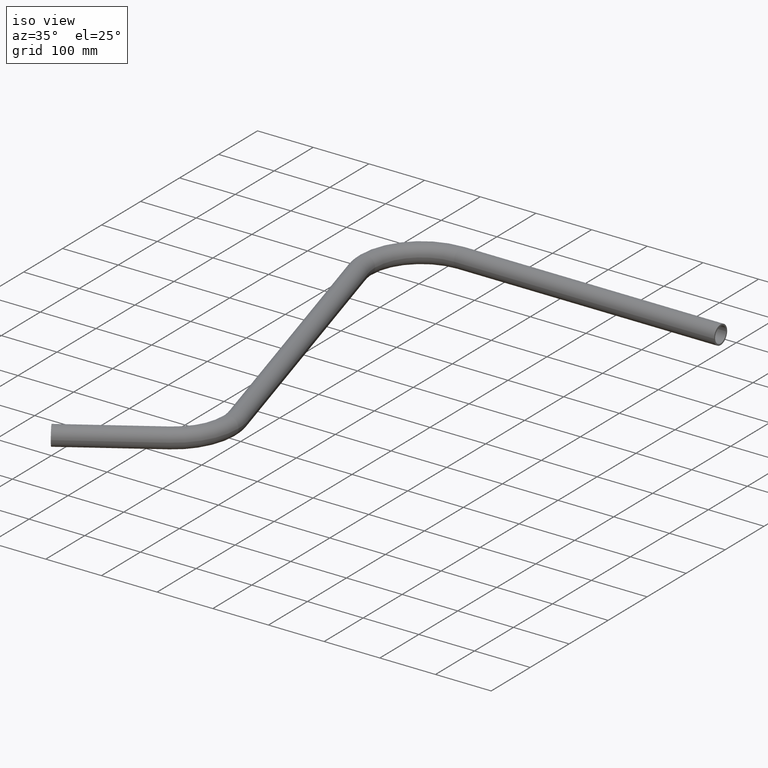
[diagram: clean part render]
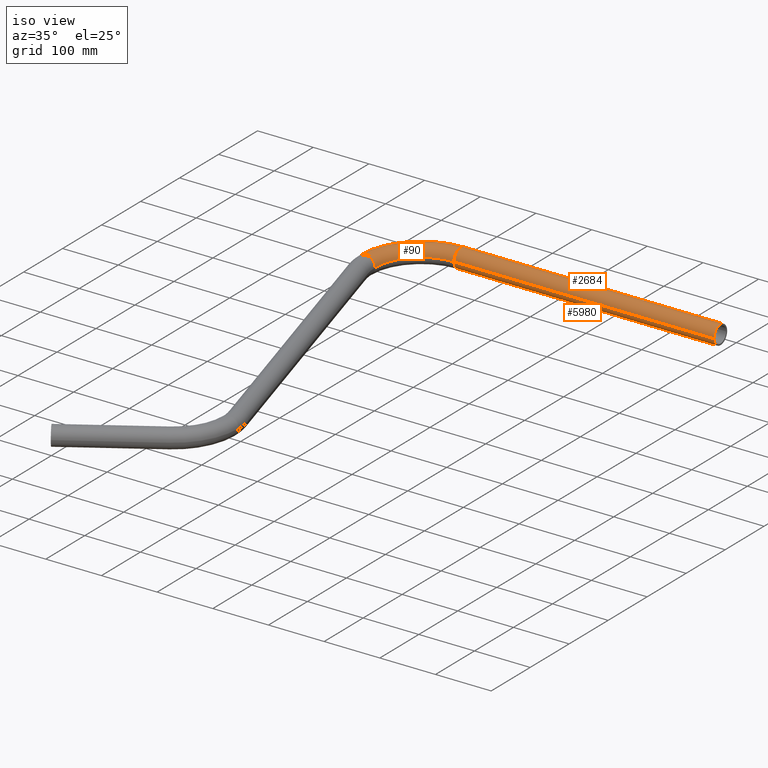
[diagram: same view with one multi-face feature highlighted, each face labeled with its STEP entity id]
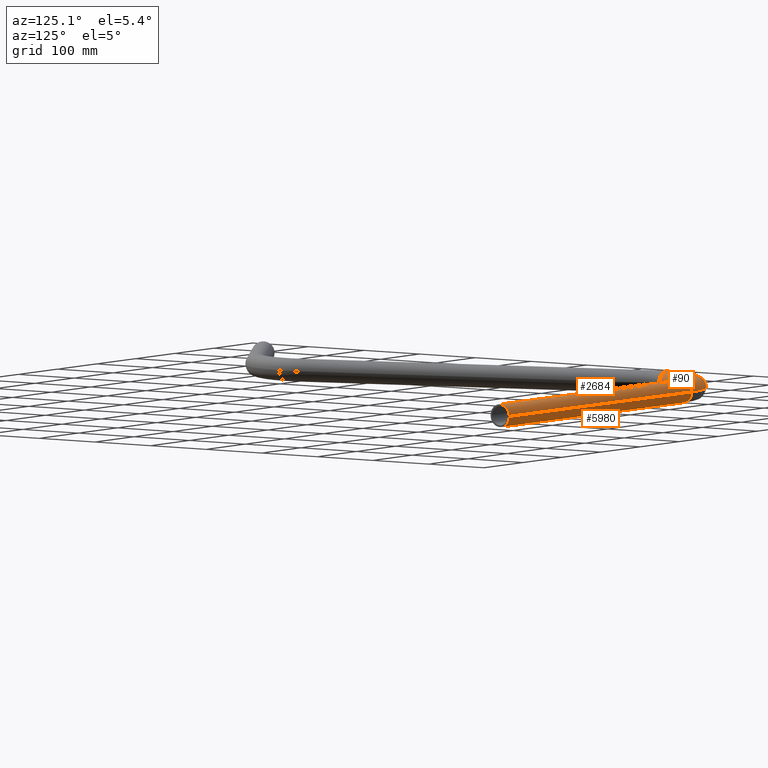
[diagram: same view with one multi-face feature highlighted, each face labeled with its STEP entity id]
A machine part, iso view. The highlighted faces form ONE feature: a constant-radius fillet chain: 3 tangent blend faces with common blend radius 16.85 mm. The faces share edges in the B-rep.
A second angle (auxiliary view) of the same feature is appended — it is thin or edge-on in the first view.
Their STEP definitions:
[1] entity #2684 (Cylinder):
#247 = VERTEX_POINT ( 'NONE', #3042 ) ;
#535 = CARTESIAN_POINT ( 'NONE',  ( 138.5397640499743700, 851.5035646201643000, 0.0000000000000000000 ) ) ;
#806 = AXIS2_PLACEMENT_3D ( 'NONE', #535, #7148, #1537 ) ;
#1098 = AXIS2_PLACEMENT_3D ( 'NONE', #6550, #12146, #7471 ) ;
#1235 = EDGE_CURVE ( 'NONE', #6672, #2639, #6224, .T. ) ;
#1537 = DIRECTION ( 'NONE',  ( 0.0000000000000000000, 1.000000000000000000, 0.0000000000000000000 ) ) ;
#1952 = EDGE_LOOP ( 'NONE', ( #4242, #9487, #2928, #2951 ) ) ;
#2072 = CARTESIAN_POINT ( 'NONE',  ( 138.5397640499743700, 834.6535646201642700, 2.063529856563286700E-015 ) ) ;
#2639 = VERTEX_POINT ( 'NONE', #7659 ) ;
#2684 = ADVANCED_FACE ( 'NONE', ( #4166 ), #7936, .T. ) ;
#2829 = DIRECTION ( 'NONE',  ( 1.000000000000000000, 1.504352198367086800E-014, -3.826221258505971600E-017 ) ) ;
#2928 = ORIENTED_EDGE ( 'NONE', *, *, #8511, .F. ) ;
#2951 = ORIENTED_EDGE ( 'NONE', *, *, #4319, .F. ) ;
#3042 = CARTESIAN_POINT ( 'NONE',  ( 605.8352818879164900, 868.3535646201640900, 0.0000000000000000000 ) ) ;
#3475 = VERTEX_POINT ( 'NONE', #10550 ) ;
#4166 = FACE_OUTER_BOUND ( 'NONE', #1952, .T. ) ;
#4217 = DIRECTION ( 'NONE',  ( 1.000000000000000000, -4.751695585533869400E-016, 0.0000000000000000000 ) ) ;
#4242 = ORIENTED_EDGE ( 'NONE', *, *, #5466, .T. ) ;
#4319 = EDGE_CURVE ( 'NONE', #3475, #247, #10267, .T. ) ;
#5466 = EDGE_CURVE ( 'NONE', #3475, #6672, #6930, .T. ) ;
#5861 = DIRECTION ( 'NONE',  ( 1.000000000000000000, -4.751695585533869400E-016, 0.0000000000000000000 ) ) ;
#6224 = LINE ( 'NONE', #9578, #10881 ) ;
#6246 = AXIS2_PLACEMENT_3D ( 'NONE', #8416, #2829, #9352 ) ;
#6550 = CARTESIAN_POINT ( 'NONE',  ( 138.5397640499745900, 851.5035646201643000, 0.0000000000000000000 ) ) ;
#6672 = VERTEX_POINT ( 'NONE', #2072 ) ;
#6930 = CIRCLE ( 'NONE', #806, 16.85000000000003000 ) ;
#7148 = DIRECTION ( 'NONE',  ( 1.000000000000000000, -4.751695585533869400E-016, 0.0000000000000000000 ) ) ;
#7471 = DIRECTION ( 'NONE',  ( 0.0000000000000000000, 1.000000000000000000, 0.0000000000000000000 ) ) ;
#7659 = CARTESIAN_POINT ( 'NONE',  ( 605.8352818879169500, 834.6535646201640500, 2.063529856563282000E-015 ) ) ;
#7936 = CYLINDRICAL_SURFACE ( 'NONE', #1098, 16.85000000000003000 ) ;
#8359 = CIRCLE ( 'NONE', #6246, 16.85000000000003000 ) ;
#8416 = CARTESIAN_POINT ( 'NONE',  ( 605.8352818879167200, 851.5035646201640700, 0.0000000000000000000 ) ) ;
#8511 = EDGE_CURVE ( 'NONE', #247, #2639, #8359, .T. ) ;
#9352 = DIRECTION ( 'NONE',  ( -1.317772136053595900E-014, 1.000000000000000000, 0.0000000000000000000 ) ) ;
#9487 = ORIENTED_EDGE ( 'NONE', *, *, #1235, .T. ) ;
#9578 = CARTESIAN_POINT ( 'NONE',  ( 138.5397640499745900, 834.6535646201642700, 2.063529856563290200E-015 ) ) ;
#9790 = CARTESIAN_POINT ( 'NONE',  ( 138.5397640499745900, 868.3535646201643200, 0.0000000000000000000 ) ) ;
#10267 = LINE ( 'NONE', #9790, #10561 ) ;
#10550 = CARTESIAN_POINT ( 'NONE',  ( 138.5397640499743700, 868.3535646201643200, 0.0000000000000000000 ) ) ;
#10561 = VECTOR ( 'NONE', #4217, 1000.000000000000000 ) ;
#10881 = VECTOR ( 'NONE', #5861, 1000.000000000000000 ) ;
#12146 = DIRECTION ( 'NONE',  ( 1.000000000000000000, -4.751695585533869400E-016, 0.0000000000000000000 ) ) ;
[2] entity #90 (Torus):
#34 = EDGE_CURVE ( 'NONE', #2954, #4651, #5684, .T. ) ;
#69 = DIRECTION ( 'NONE',  ( -0.0000000000000000000, -0.0000000000000000000, -1.000000000000000000 ) ) ;
#90 = ADVANCED_FACE ( 'NONE', ( #2923 ), #7583, .T. ) ;
#535 = CARTESIAN_POINT ( 'NONE',  ( 138.5397640499743700, 851.5035646201643000, 0.0000000000000000000 ) ) ;
#573 = DIRECTION ( 'NONE',  ( -1.000000000000000000, 0.0000000000000000000, 0.0000000000000000000 ) ) ;
#619 = DIRECTION ( 'NONE',  ( -0.0000000000000000000, -0.0000000000000000000, -1.000000000000000000 ) ) ;
#633 = CARTESIAN_POINT ( 'NONE',  ( 138.5397640499745900, 751.5035646201644100, 0.0000000000000000000 ) ) ;
#806 = AXIS2_PLACEMENT_3D ( 'NONE', #535, #7148, #1537 ) ;
#1204 = CARTESIAN_POINT ( 'NONE',  ( 38.53976404997469300, 751.5035646201644100, 0.0000000000000000000 ) ) ;
#1236 = DIRECTION ( 'NONE',  ( 0.0000000000000000000, 0.0000000000000000000, -1.000000000000000000 ) ) ;
#1277 = DIRECTION ( 'NONE',  ( 0.0000000000000000000, -1.000000000000000000, 0.0000000000000000000 ) ) ;
#1537 = DIRECTION ( 'NONE',  ( 0.0000000000000000000, 1.000000000000000000, 0.0000000000000000000 ) ) ;
#1862 = CARTESIAN_POINT ( 'NONE',  ( 21.68976404997469100, 751.5035646201644100, 0.0000000000000000000 ) ) ;
#1943 = CIRCLE ( 'NONE', #4146, 116.8499999999998900 ) ;
#2072 = CARTESIAN_POINT ( 'NONE',  ( 138.5397640499743700, 834.6535646201642700, 2.063529856563286700E-015 ) ) ;
#2907 = AXIS2_PLACEMENT_3D ( 'NONE', #1204, #1277, #1236 ) ;
#2923 = FACE_OUTER_BOUND ( 'NONE', #11772, .T. ) ;
#2954 = VERTEX_POINT ( 'NONE', #8005 ) ;
#3030 = DIRECTION ( 'NONE',  ( -0.0000000000000000000, -0.0000000000000000000, -1.000000000000000000 ) ) ;
#3475 = VERTEX_POINT ( 'NONE', #10550 ) ;
#3841 = ORIENTED_EDGE ( 'NONE', *, *, #5466, .F. ) ;
#4146 = AXIS2_PLACEMENT_3D ( 'NONE', #5724, #69, #6694 ) ;
#4272 = ORIENTED_EDGE ( 'NONE', *, *, #34, .F. ) ;
#4651 = VERTEX_POINT ( 'NONE', #1862 ) ;
#5407 = AXIS2_PLACEMENT_3D ( 'NONE', #633, #619, #573 ) ;
#5466 = EDGE_CURVE ( 'NONE', #3475, #6672, #6930, .T. ) ;
#5487 = ORIENTED_EDGE ( 'NONE', *, *, #7304, .T. ) ;
#5684 = CIRCLE ( 'NONE', #2907, 16.85000000000000100 ) ;
#5724 = CARTESIAN_POINT ( 'NONE',  ( 138.5397640499745900, 751.5035646201644100, 0.0000000000000000000 ) ) ;
#5775 = AXIS2_PLACEMENT_3D ( 'NONE', #8604, #3030, #9546 ) ;
#6607 = ORIENTED_EDGE ( 'NONE', *, *, #6828, .F. ) ;
#6672 = VERTEX_POINT ( 'NONE', #2072 ) ;
#6694 = DIRECTION ( 'NONE',  ( -1.000000000000000000, 0.0000000000000000000, 0.0000000000000000000 ) ) ;
#6828 = EDGE_CURVE ( 'NONE', #4651, #3475, #1943, .T. ) ;
#6930 = CIRCLE ( 'NONE', #806, 16.85000000000003000 ) ;
#7148 = DIRECTION ( 'NONE',  ( 1.000000000000000000, -4.751695585533869400E-016, 0.0000000000000000000 ) ) ;
#7304 = EDGE_CURVE ( 'NONE', #2954, #6672, #10124, .T. ) ;
#7583 = TOROIDAL_SURFACE ( 'NONE', #5407, 99.99999999999990100, 16.85000000000000100 ) ;
#8005 = CARTESIAN_POINT ( 'NONE',  ( 55.38976404997470100, 751.5035646201644100, 2.063529856563289800E-015 ) ) ;
#8604 = CARTESIAN_POINT ( 'NONE',  ( 138.5397640499745900, 751.5035646201644100, 2.063529856563290200E-015 ) ) ;
#9546 = DIRECTION ( 'NONE',  ( -1.000000000000000000, 0.0000000000000000000, 0.0000000000000000000 ) ) ;
#10124 = CIRCLE ( 'NONE', #5775, 83.14999999999989200 ) ;
#10550 = CARTESIAN_POINT ( 'NONE',  ( 138.5397640499743700, 868.3535646201643200, 0.0000000000000000000 ) ) ;
#11772 = EDGE_LOOP ( 'NONE', ( #6607, #4272, #5487, #3841 ) ) ;
[3] entity #5980 (Cylinder):
#247 = VERTEX_POINT ( 'NONE', #3042 ) ;
#254 = CARTESIAN_POINT ( 'NONE',  ( 138.5397640499745900, 851.5035646201643000, 0.0000000000000000000 ) ) ;
#505 = DIRECTION ( 'NONE',  ( 1.000000000000000000, -4.751695585533869400E-016, 0.0000000000000000000 ) ) ;
#1235 = EDGE_CURVE ( 'NONE', #6672, #2639, #6224, .T. ) ;
#1515 = CIRCLE ( 'NONE', #8579, 16.85000000000003000 ) ;
#2072 = CARTESIAN_POINT ( 'NONE',  ( 138.5397640499743700, 834.6535646201642700, 2.063529856563286700E-015 ) ) ;
#2501 = AXIS2_PLACEMENT_3D ( 'NONE', #254, #8717, #3146 ) ;
#2639 = VERTEX_POINT ( 'NONE', #7659 ) ;
#3042 = CARTESIAN_POINT ( 'NONE',  ( 605.8352818879164900, 868.3535646201640900, 0.0000000000000000000 ) ) ;
#3146 = DIRECTION ( 'NONE',  ( 0.0000000000000000000, 1.000000000000000000, 0.0000000000000000000 ) ) ;
#3317 = EDGE_CURVE ( 'NONE', #2639, #247, #7508, .T. ) ;
#3475 = VERTEX_POINT ( 'NONE', #10550 ) ;
#3873 = DIRECTION ( 'NONE',  ( 1.000000000000000000, 1.504352198367086800E-014, -3.826221258505971600E-017 ) ) ;
#4159 = FACE_OUTER_BOUND ( 'NONE', #8803, .T. ) ;
#4217 = DIRECTION ( 'NONE',  ( 1.000000000000000000, -4.751695585533869400E-016, 0.0000000000000000000 ) ) ;
#4319 = EDGE_CURVE ( 'NONE', #3475, #247, #10267, .T. ) ;
#5132 = EDGE_CURVE ( 'NONE', #6672, #3475, #1515, .T. ) ;
#5861 = DIRECTION ( 'NONE',  ( 1.000000000000000000, -4.751695585533869400E-016, 0.0000000000000000000 ) ) ;
#5980 = ADVANCED_FACE ( 'NONE', ( #4159 ), #8808, .T. ) ;
#6143 = CARTESIAN_POINT ( 'NONE',  ( 138.5397640499743700, 851.5035646201643000, 0.0000000000000000000 ) ) ;
#6224 = LINE ( 'NONE', #9578, #10881 ) ;
#6672 = VERTEX_POINT ( 'NONE', #2072 ) ;
#7111 = DIRECTION ( 'NONE',  ( 0.0000000000000000000, 1.000000000000000000, 0.0000000000000000000 ) ) ;
#7508 = CIRCLE ( 'NONE', #8615, 16.85000000000003000 ) ;
#7659 = CARTESIAN_POINT ( 'NONE',  ( 605.8352818879169500, 834.6535646201640500, 2.063529856563282000E-015 ) ) ;
#8579 = AXIS2_PLACEMENT_3D ( 'NONE', #6143, #505, #7111 ) ;
#8615 = AXIS2_PLACEMENT_3D ( 'NONE', #9461, #3873, #10384 ) ;
#8717 = DIRECTION ( 'NONE',  ( 1.000000000000000000, -4.751695585533869400E-016, 0.0000000000000000000 ) ) ;
#8803 = EDGE_LOOP ( 'NONE', ( #10955, #10505, #9295, #10536 ) ) ;
#8808 = CYLINDRICAL_SURFACE ( 'NONE', #2501, 16.85000000000003000 ) ;
#9295 = ORIENTED_EDGE ( 'NONE', *, *, #4319, .T. ) ;
#9461 = CARTESIAN_POINT ( 'NONE',  ( 605.8352818879167200, 851.5035646201640700, 0.0000000000000000000 ) ) ;
#9578 = CARTESIAN_POINT ( 'NONE',  ( 138.5397640499745900, 834.6535646201642700, 2.063529856563290200E-015 ) ) ;
#9790 = CARTESIAN_POINT ( 'NONE',  ( 138.5397640499745900, 868.3535646201643200, 0.0000000000000000000 ) ) ;
#10267 = LINE ( 'NONE', #9790, #10561 ) ;
#10384 = DIRECTION ( 'NONE',  ( -1.317772136053595900E-014, 1.000000000000000000, 0.0000000000000000000 ) ) ;
#10505 = ORIENTED_EDGE ( 'NONE', *, *, #5132, .T. ) ;
#10536 = ORIENTED_EDGE ( 'NONE', *, *, #3317, .F. ) ;
#10550 = CARTESIAN_POINT ( 'NONE',  ( 138.5397640499743700, 868.3535646201643200, 0.0000000000000000000 ) ) ;
#10561 = VECTOR ( 'NONE', #4217, 1000.000000000000000 ) ;
#10881 = VECTOR ( 'NONE', #5861, 1000.000000000000000 ) ;
#10955 = ORIENTED_EDGE ( 'NONE', *, *, #1235, .F. ) ;